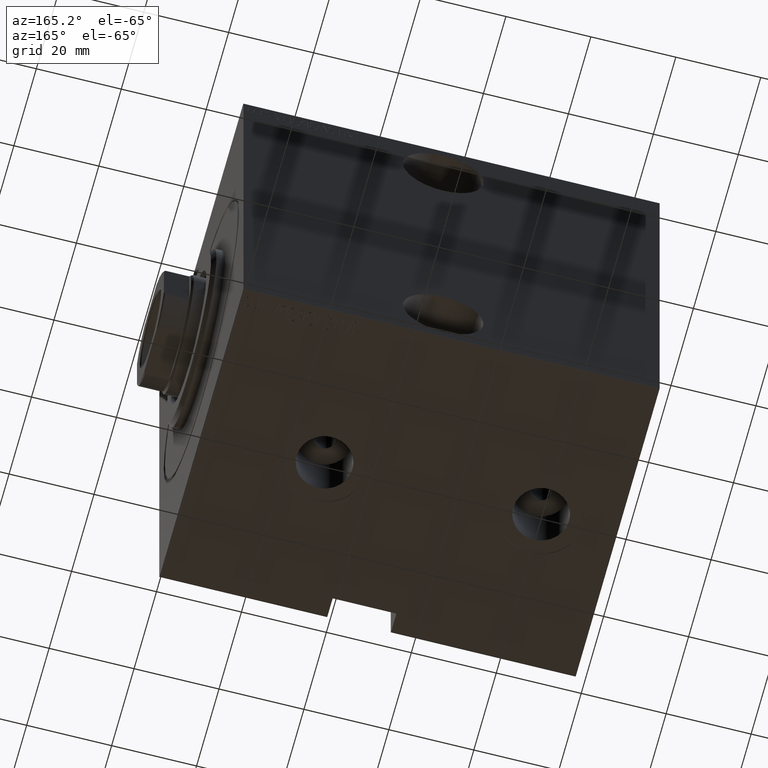
[diagram: clean part render]
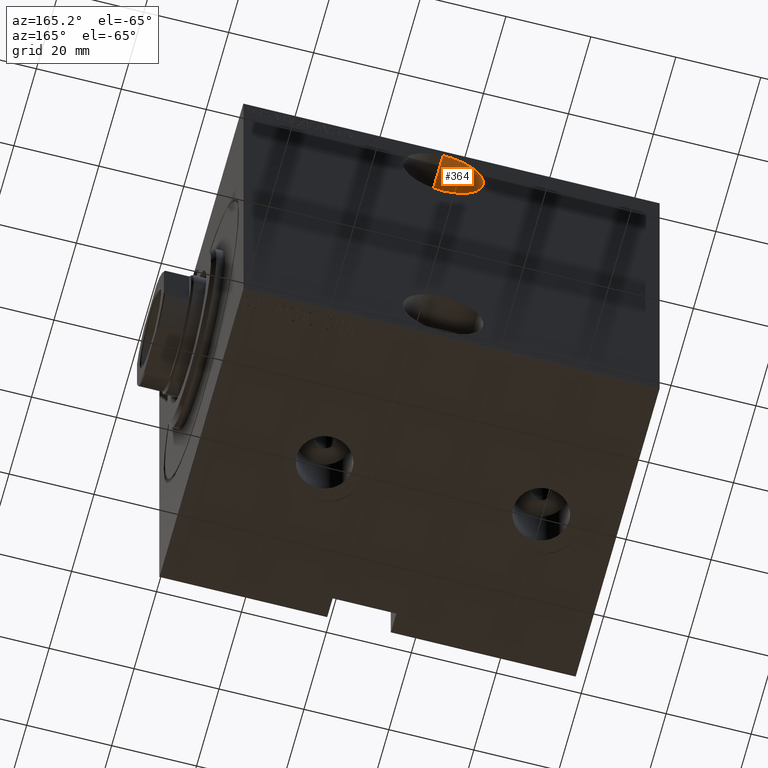
[diagram: same view with one face highlighted and labeled with its STEP entity id]
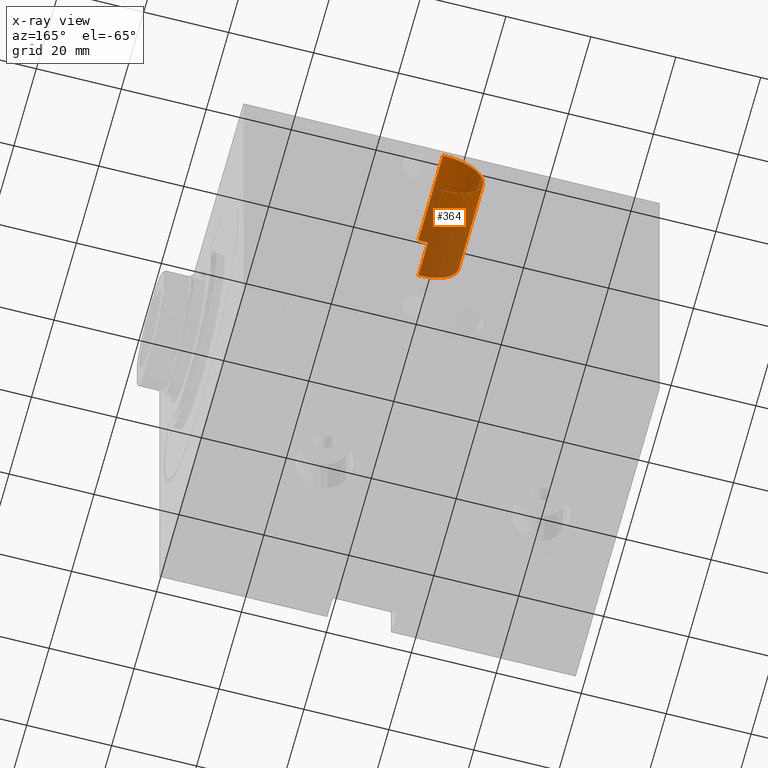
[diagram: x-ray of the same camera — body ghosted, the highlighted face saturated]
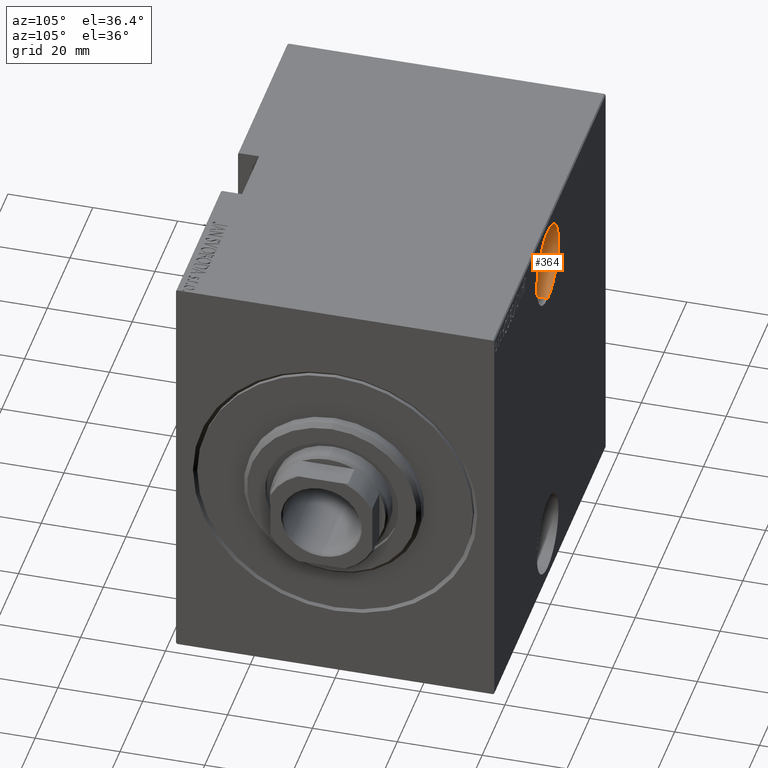
[diagram: same view with one face highlighted and labeled with its STEP entity id]
A machine part, auxiliary view. The second image highlights one B-rep face of the part: STEP entity #364.
The next image is the same camera in x-ray: the body ghosted, the highlighted face saturated — about 54% of this face is hidden behind the body in this view.
A second angle (auxiliary view) of the same face is appended — the face is thin or edge-on in the first view.
In plain terms, the highlighted cylindrical surface (partial cylindrical patch) has radius 9.5 mm, axis along (0, 1, 0).
Its self-contained STEP definition (entity closure, byte-faithful):
#2 = EDGE_CURVE ( 'NONE', #13922, #2883, #2687, .T. ) ;
#320 = DIRECTION ( 'NONE',  ( -0.000000000000000000, -1.000000000000000000, 1.963837897332234688E-16 ) ) ;
#364 = ADVANCED_FACE ( 'NONE', ( #17190 ), #30441, .F. ) ;
#531 = VECTOR ( 'NONE', #20809, 1000.000000000000000 ) ;
#2607 = ORIENTED_EDGE ( 'NONE', *, *, #17505, .T. ) ;
#2687 = CIRCLE ( 'NONE', #8883, 9.500000000000001776 ) ;
#2883 = VERTEX_POINT ( 'NONE', #5466 ) ;
#3635 = EDGE_LOOP ( 'NONE', ( #18975, #18787, #36279, #2607 ) ) ;
#4366 = CARTESIAN_POINT ( 'NONE',  ( 47.00000000000002132, -15.49999999999999112, 47.49999999999999289 ) ) ;
#4931 = CARTESIAN_POINT ( 'NONE',  ( 47.00000000000002132, -37.49999999999999289, 47.50000000000000000 ) ) ;
#5440 = AXIS2_PLACEMENT_3D ( 'NONE', #41452, #24139, #40596 ) ;
#5466 = CARTESIAN_POINT ( 'NONE',  ( 47.00000000000002132, -15.49999999999999112, 47.49999999999999289 ) ) ;
#6030 = DIRECTION ( 'NONE',  ( 0.000000000000000000, -1.000000000000000000, 1.963837897332234442E-16 ) ) ;
#7675 = CARTESIAN_POINT ( 'NONE',  ( 47.00000000000002132, -15.49999999999999289, 37.99999999999999289 ) ) ;
#8883 = AXIS2_PLACEMENT_3D ( 'NONE', #36332, #6030, #19650 ) ;
#13721 = CARTESIAN_POINT ( 'NONE',  ( 47.00000000000002132, -15.49999999999999467, 28.49999999999998934 ) ) ;
#13922 = VERTEX_POINT ( 'NONE', #17859 ) ;
#16745 = LINE ( 'NONE', #13721, #28883 ) ;
#17190 = FACE_OUTER_BOUND ( 'NONE', #3635, .T. ) ;
#17284 = EDGE_CURVE ( 'NONE', #13922, #33638, #16745, .T. ) ;
#17505 = EDGE_CURVE ( 'NONE', #33638, #29880, #42787, .T. ) ;
#17859 = CARTESIAN_POINT ( 'NONE',  ( 47.00000000000002132, -15.49999999999999467, 28.49999999999998934 ) ) ;
#18787 = ORIENTED_EDGE ( 'NONE', *, *, #2, .F. ) ;
#18975 = ORIENTED_EDGE ( 'NONE', *, *, #19543, .F. ) ;
#19543 = EDGE_CURVE ( 'NONE', #2883, #29880, #29929, .T. ) ;
#19650 = DIRECTION ( 'NONE',  ( 0.000000000000000000, -1.826024711554533420E-16, -1.000000000000000000 ) ) ;
#20809 = DIRECTION ( 'NONE',  ( -0.000000000000000000, -1.000000000000000000, 1.963837897332234688E-16 ) ) ;
#24139 = DIRECTION ( 'NONE',  ( 0.000000000000000000, -1.000000000000000000, 1.963837897332234442E-16 ) ) ;
#28883 = VECTOR ( 'NONE', #320, 1000.000000000000000 ) ;
#29880 = VERTEX_POINT ( 'NONE', #4931 ) ;
#29929 = LINE ( 'NONE', #4366, #531 ) ;
#30441 = CYLINDRICAL_SURFACE ( 'NONE', #31963, 9.500000000000001776 ) ;
#31963 = AXIS2_PLACEMENT_3D ( 'NONE', #7675, #36917, #33677 ) ;
#33638 = VERTEX_POINT ( 'NONE', #36122 ) ;
#33677 = DIRECTION ( 'NONE',  ( 0.000000000000000000, -1.826024711554533420E-16, -1.000000000000000000 ) ) ;
#36122 = CARTESIAN_POINT ( 'NONE',  ( 47.00000000000002132, -37.49999999999999289, 28.49999999999999645 ) ) ;
#36279 = ORIENTED_EDGE ( 'NONE', *, *, #17284, .T. ) ;
#36332 = CARTESIAN_POINT ( 'NONE',  ( 47.00000000000002132, -15.49999999999999289, 37.99999999999999289 ) ) ;
#36917 = DIRECTION ( 'NONE',  ( -0.000000000000000000, -1.000000000000000000, 1.963837897332234688E-16 ) ) ;
#40596 = DIRECTION ( 'NONE',  ( 0.000000000000000000, 0.000000000000000000, -1.000000000000000000 ) ) ;
#41452 = CARTESIAN_POINT ( 'NONE',  ( 47.00000000000002132, -37.49999999999999289, 38.00000000000000000 ) ) ;
#42787 = CIRCLE ( 'NONE', #5440, 9.500000000000001776 ) ;